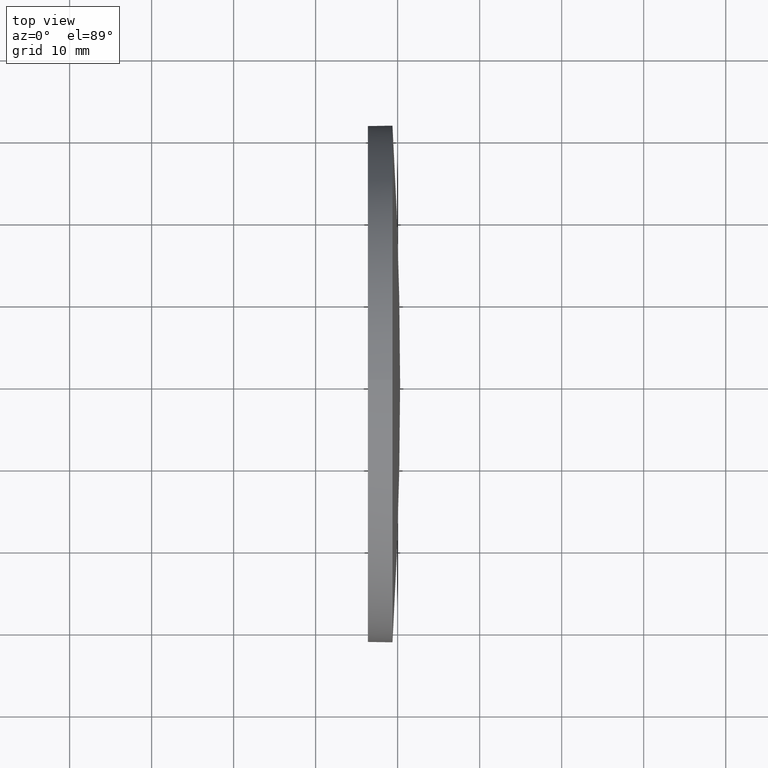
[diagram: clean part render]
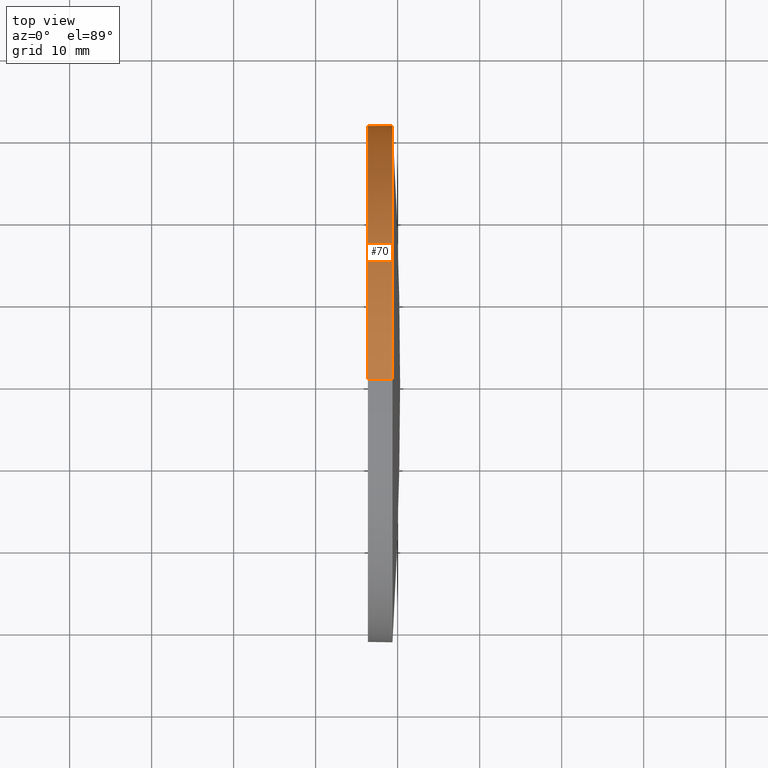
[diagram: same view with one face highlighted and labeled with its STEP entity id]
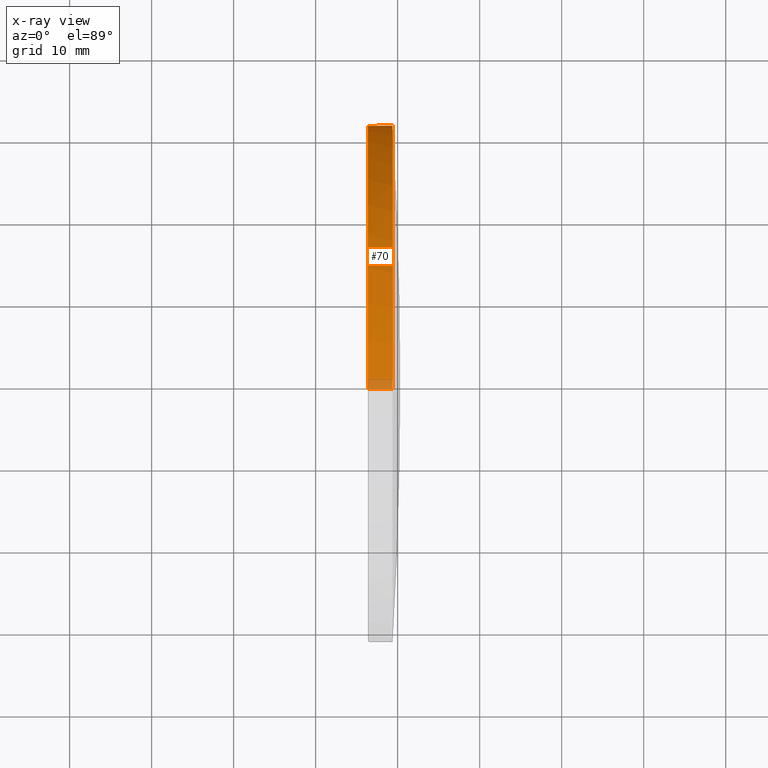
[diagram: x-ray of the same camera — body ghosted, the highlighted face saturated]
A machine part, top view. The second image highlights one B-rep face of the part: STEP entity #70.
The next image is the same camera in x-ray: the body ghosted, the highlighted face saturated — about 3% of this face is hidden behind the body in this view.
In plain terms, the highlighted cylindrical surface (partial cylindrical patch) has radius 31.5 mm, axis along (-1, -0, -0).
Its self-contained STEP definition (entity closure, byte-faithful):
#2 = AXIS2_PLACEMENT_3D ( 'NONE', #176, #177, #114 ) ;
#3 = CARTESIAN_POINT ( 'NONE',  ( 239.3701037227096700, 130.0418907599245100, 0.0000000000000000000 ) ) ;
#9 = VECTOR ( 'NONE', #184, 1000.000000000000000 ) ;
#10 = EDGE_CURVE ( 'NONE', #45, #39, #79, .T. ) ;
#12 = EDGE_CURVE ( 'NONE', #17, #39, #161, .T. ) ;
#15 = DIRECTION ( 'NONE',  ( 0.0000000000000000000, 0.0000000000000000000, 1.000000000000000000 ) ) ;
#16 = DIRECTION ( 'NONE',  ( -1.000000000000000000, -0.0000000000000000000, -0.0000000000000000000 ) ) ;
#17 = VERTEX_POINT ( 'NONE', #30 ) ;
#30 = CARTESIAN_POINT ( 'NONE',  ( 239.3701037227096700, 130.0418907599245100, -31.50000000000000000 ) ) ;
#31 = CARTESIAN_POINT ( 'NONE',  ( 236.3701037227096700, 130.0418907599245100, 31.50000000000000000 ) ) ;
#34 = ORIENTED_EDGE ( 'NONE', *, *, #95, .T. ) ;
#35 = VECTOR ( 'NONE', #120, 1000.000000000000000 ) ;
#39 = VERTEX_POINT ( 'NONE', #57 ) ;
#45 = VERTEX_POINT ( 'NONE', #31 ) ;
#48 = AXIS2_PLACEMENT_3D ( 'NONE', #75, #16, #133 ) ;
#49 = EDGE_LOOP ( 'NONE', ( #34, #83, #92, #127, #181 ) ) ;
#55 = CARTESIAN_POINT ( 'NONE',  ( 239.3701037227096700, 161.5418907599248500, 3.857637417314063300E-015 ) ) ;
#56 = AXIS2_PLACEMENT_3D ( 'NONE', #89, #154, #15 ) ;
#57 = CARTESIAN_POINT ( 'NONE',  ( 236.3701037227096700, 130.0418907599245100, -31.50000000000000000 ) ) ;
#70 = ADVANCED_FACE ( 'NONE', ( #143 ), #105, .T. ) ;
#75 = CARTESIAN_POINT ( 'NONE',  ( 236.3701037227096700, 130.0418907599245100, 0.0000000000000000000 ) ) ;
#78 = EDGE_CURVE ( 'NONE', #174, #45, #149, .T. ) ;
#79 = CIRCLE ( 'NONE', #48, 31.50000000000000000 ) ;
#80 = CIRCLE ( 'NONE', #86, 31.50000000000000000 ) ;
#83 = ORIENTED_EDGE ( 'NONE', *, *, #12, .T. ) ;
#86 = AXIS2_PLACEMENT_3D ( 'NONE', #3, #93, #162 ) ;
#89 = CARTESIAN_POINT ( 'NONE',  ( 217.3311486608872700, 130.0418907599245100, 0.0000000000000000000 ) ) ;
#92 = ORIENTED_EDGE ( 'NONE', *, *, #10, .F. ) ;
#93 = DIRECTION ( 'NONE',  ( -1.000000000000000000, -0.0000000000000000000, -0.0000000000000000000 ) ) ;
#95 = EDGE_CURVE ( 'NONE', #98, #17, #122, .T. ) ;
#98 = VERTEX_POINT ( 'NONE', #55 ) ;
#101 = CARTESIAN_POINT ( 'NONE',  ( 217.3311486608872700, 130.0418907599245100, 31.50000000000000000 ) ) ;
#102 = EDGE_CURVE ( 'NONE', #174, #98, #80, .T. ) ;
#105 = CYLINDRICAL_SURFACE ( 'NONE', #56, 31.50000000000000000 ) ;
#114 = DIRECTION ( 'NONE',  ( 0.0000000000000000000, 0.0000000000000000000, 1.000000000000000000 ) ) ;
#120 = DIRECTION ( 'NONE',  ( -1.000000000000000000, -0.0000000000000000000, -0.0000000000000000000 ) ) ;
#122 = CIRCLE ( 'NONE', #2, 31.50000000000000000 ) ;
#127 = ORIENTED_EDGE ( 'NONE', *, *, #78, .F. ) ;
#133 = DIRECTION ( 'NONE',  ( 0.0000000000000000000, 0.0000000000000000000, 1.000000000000000000 ) ) ;
#142 = CARTESIAN_POINT ( 'NONE',  ( 239.3701037227096700, 130.0418907599245100, 31.50000000000000000 ) ) ;
#143 = FACE_OUTER_BOUND ( 'NONE', #49, .T. ) ;
#149 = LINE ( 'NONE', #101, #35 ) ;
#154 = DIRECTION ( 'NONE',  ( -1.000000000000000000, -0.0000000000000000000, -0.0000000000000000000 ) ) ;
#161 = LINE ( 'NONE', #185, #9 ) ;
#162 = DIRECTION ( 'NONE',  ( 0.0000000000000000000, 0.0000000000000000000, 1.000000000000000000 ) ) ;
#174 = VERTEX_POINT ( 'NONE', #142 ) ;
#176 = CARTESIAN_POINT ( 'NONE',  ( 239.3701037227096700, 130.0418907599245100, 0.0000000000000000000 ) ) ;
#177 = DIRECTION ( 'NONE',  ( -1.000000000000000000, -0.0000000000000000000, -0.0000000000000000000 ) ) ;
#181 = ORIENTED_EDGE ( 'NONE', *, *, #102, .T. ) ;
#184 = DIRECTION ( 'NONE',  ( -1.000000000000000000, -0.0000000000000000000, -0.0000000000000000000 ) ) ;
#185 = CARTESIAN_POINT ( 'NONE',  ( 217.3311486608872700, 130.0418907599245100, -31.50000000000000000 ) ) ;